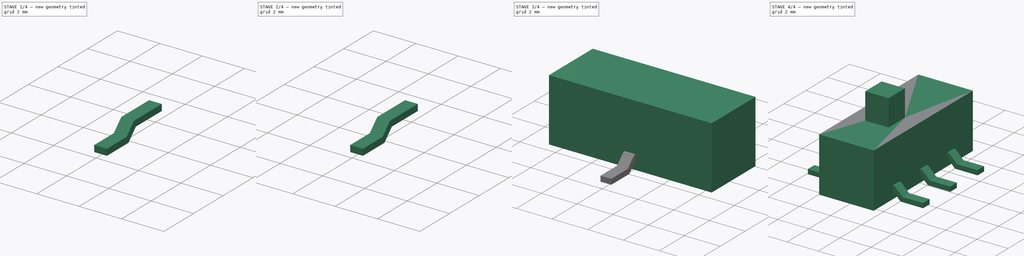
[diagram: build sequence overview — one tinted view per stage of 4, left to right]
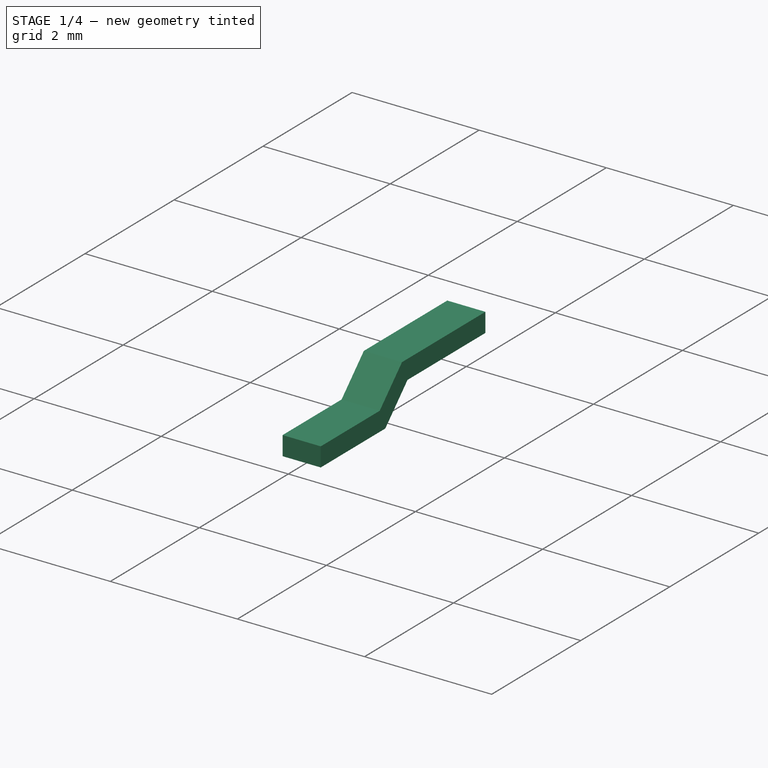
[diagram: stage 1 of 4 — iso view after this stage's code; geometry added in this stage tinted green]
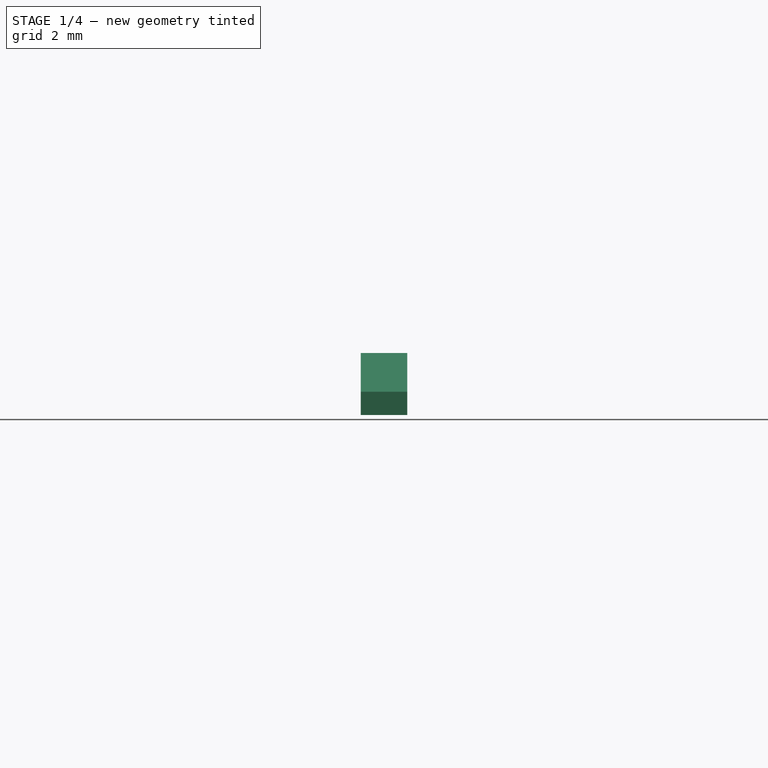
[diagram: stage 1 of 4 — front view after this stage's code; geometry added in this stage tinted green]
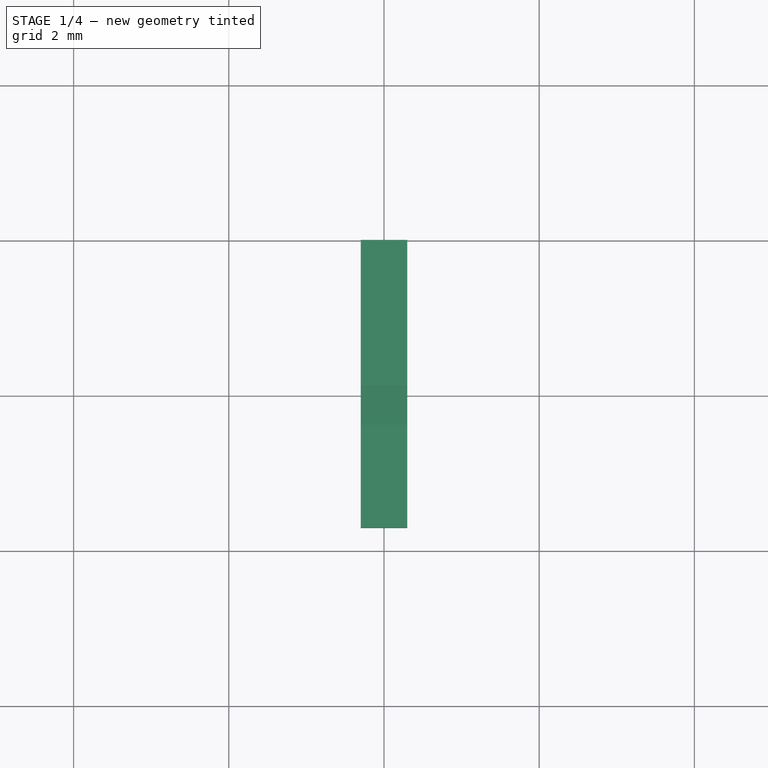
[diagram: stage 1 of 4 — top view after this stage's code; geometry added in this stage tinted green]
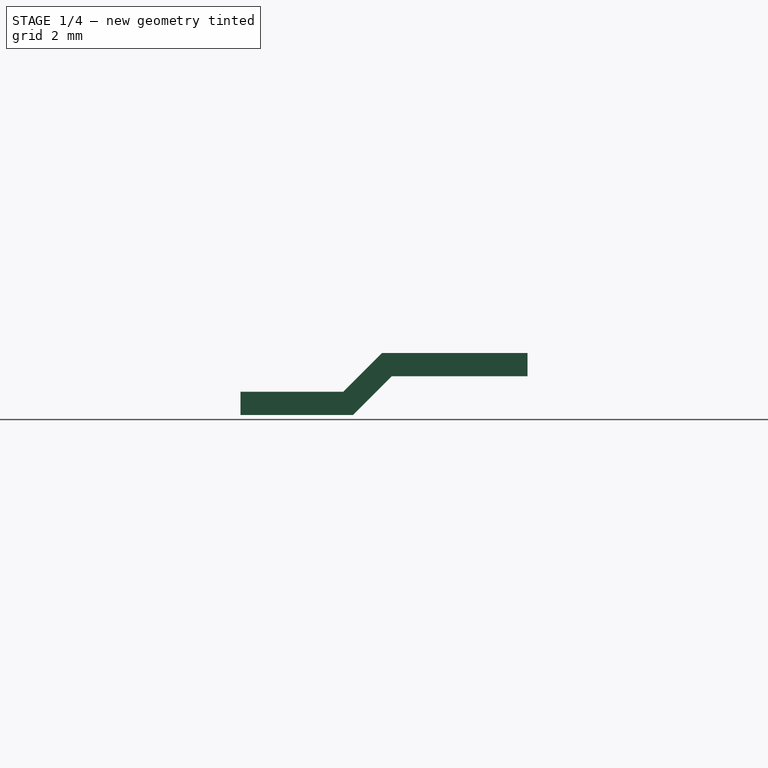
[diagram: stage 1 of 4 — right view after this stage's code; geometry added in this stage tinted green]
FCSTD DOCUMENT  (FreeCAD 1.0R39109 (Git))
Label: MST22D18G2_125
License: All rights reserved
LicenseURL: http://en.wikipedia.org/wiki/All_rights_reserved
objects: PartDesign::Body×7, Sketcher::SketchObject×5, PartDesign::FeatureBase×5, Part::Feature×5, PartDesign::Pad×3, App::DocumentObjectGroup×1, Part::MultiFuse×1
note: 42 computed .brp shape members not serialized (recipe doc carries the construction recipe); baked Part::Feature solids carry a one-line shape summary decoded from their .brp

FEATURE [PartDesign::Body] Body
  AllowCompound = false
  Group = -> [Sketch,Pad,Sketch001,Pad001]
  Origin = -> Origin
  Tip = -> Pad001
FEATURE [Sketcher::SketchObject] Sketch002
  ArcFitTolerance = 1e-06
  AttachmentSupport = -> [YZ_Plane001]
  FullyConstrained = true
  MakeInternals = false
  MapMode = 5
  Placement = pos=(0,0,0) rot=(0.57735,0.57735,0.57735;2.0944rad)
  expr: Constraints[22] = 3.5 / 2
  expr: Constraints[24] = 4.5 / 2
  expr: Constraints[26] = 7.4 / 2
  sketch-geometry (9):
    g0: LineSegment StartX=-3.7 StartY=0 StartZ=0 EndX=-2.25 EndY=0 EndZ=0
    g1: LineSegment StartX=-2.25 StartY=0 StartZ=0 EndX=-1.75 EndY=0.5 EndZ=0
    g2: LineSegment StartX=-1.75 StartY=0.5 StartZ=0 EndX=0 EndY=0.5 EndZ=0
    g3: LineSegment StartX=0 StartY=0.5 StartZ=0 EndX=0 EndY=0.8 EndZ=0
    g4: LineSegment StartX=0 StartY=0.8 StartZ=0 EndX=-1.87426 EndY=0.8 EndZ=0
    g5: LineSegment StartX=-1.87426 StartY=0.8 StartZ=0 EndX=-2.37426 EndY=0.3 EndZ=0
    g6: LineSegment StartX=-2.37426 StartY=0.3 StartZ=0 EndX=-3.7 EndY=0.3 EndZ=0
    g7: LineSegment StartX=-3.7 StartY=0.3 StartZ=0 EndX=-3.7 EndY=0 EndZ=0
    g8: LineSegment [constr] StartX=-1.75 StartY=0.5 StartZ=0 EndX=-1.96213 EndY=0.712132 EndZ=0
  constraints (27):
    c: PointOnObject(g0,g-1)
    c: PointOnObject(g0,g-1)
    c: Coincident(g1,g0)
    c: Coincident(g2,g1)
    c: Horizontal(g2)
    c: Coincident(g3,g2)
    c: Vertical(g3)
    c: Coincident(g4,g3)
    c: Horizontal(g4)
    c: Coincident(g5,g4)
    c: Coincident(g6,g5)
    c: Horizontal(g6)
    c: Coincident(g7,g6)
    c: Coincident(g7,g0)
    c: Vertical(g7)
    c: Parallel(g5,g1)
    c: DistanceY(g7,g7) = 0.3
    c: Equal(g7,g3)
    c: Coincident(g8,g1)
    c: PointOnObject(g8,g5)
    c: Perpendicular(g8,g1)
    c: Equal(g7,g8)
    c: DistanceX(g2,g2) = 1.75
    c: PointOnObject(g2,g-2)
    c: DistanceX(g0,g-1) = 2.25
    c: Angle(g-1,g1) = 0.785398
    c: DistanceX(g0,g-1) = 3.7
FEATURE [PartDesign::Pad] Pad002
  Direction = (1,0,0)
  Length = 0.6
  Length2 = 10
  Midplane = true
  Placement = pos=(0,0,0) rot=(1,1,1;2.0944rad)
  Profile = -> Sketch002
  ReferenceAxis = -> Sketch002 [N_Axis]
  Refine = true
  Suppressed = false
  Type = 0
FEATURE [PartDesign::Body] Body005  label="pin004"
  AllowCompound = false
  Group = -> [Clone003]
  Origin = -> Origin005
  Placement = pos=(-2.5,0,0) rot=(0,0,1;3.14159rad)
  Tip = -> Clone003
FEATURE [PartDesign::FeatureBase] Clone004
  BaseFeature = -> Body001
  Suppressed = false
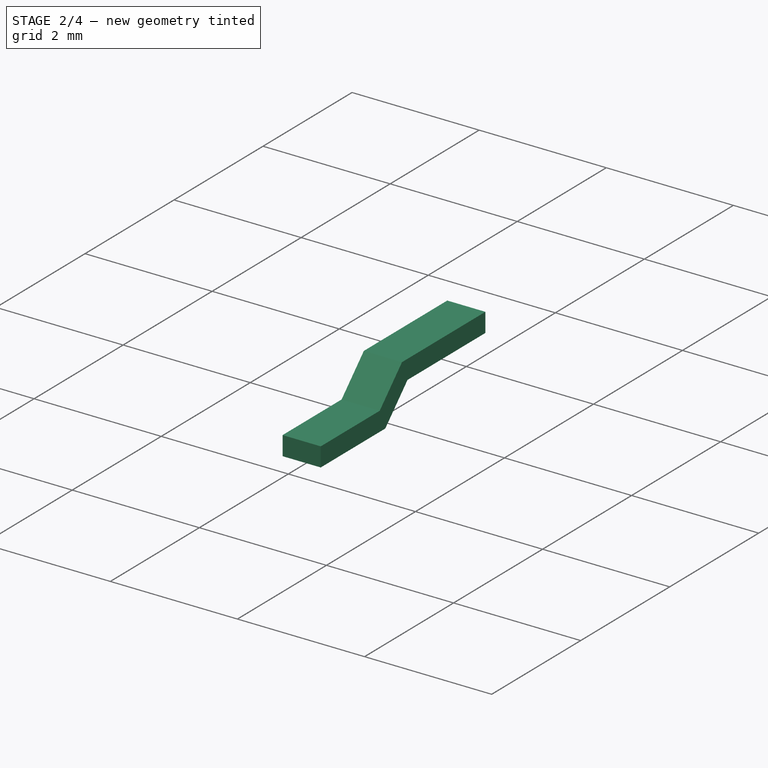
[diagram: stage 2 of 4 — iso view after this stage's code; geometry added in this stage tinted green]
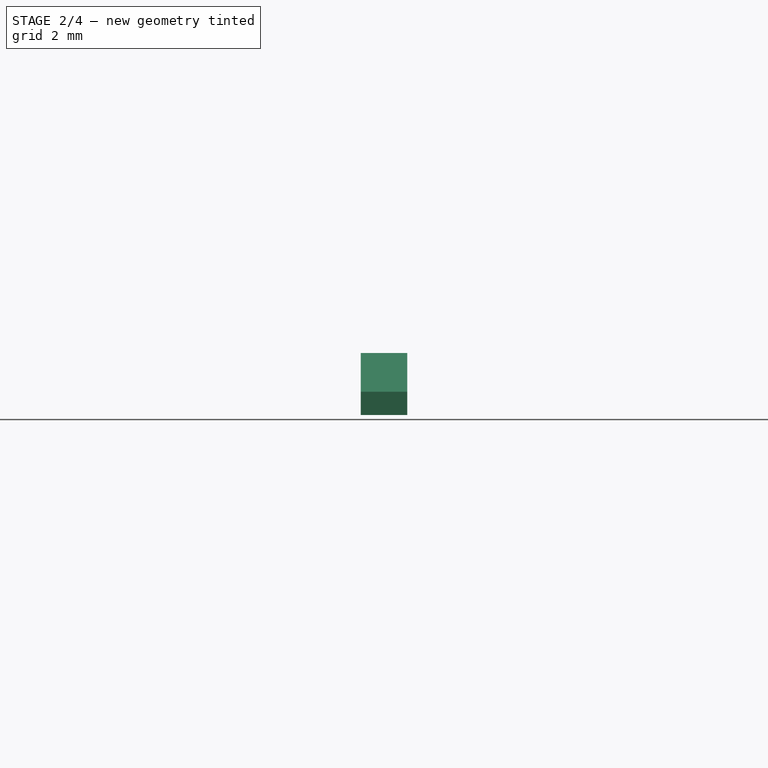
[diagram: stage 2 of 4 — front view after this stage's code; geometry added in this stage tinted green]
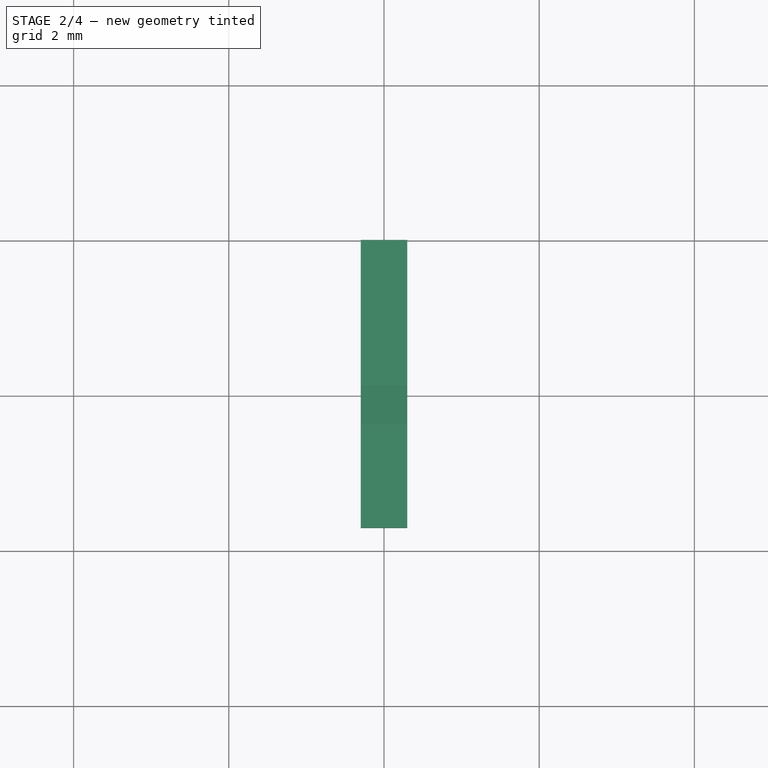
[diagram: stage 2 of 4 — top view after this stage's code; geometry added in this stage tinted green]
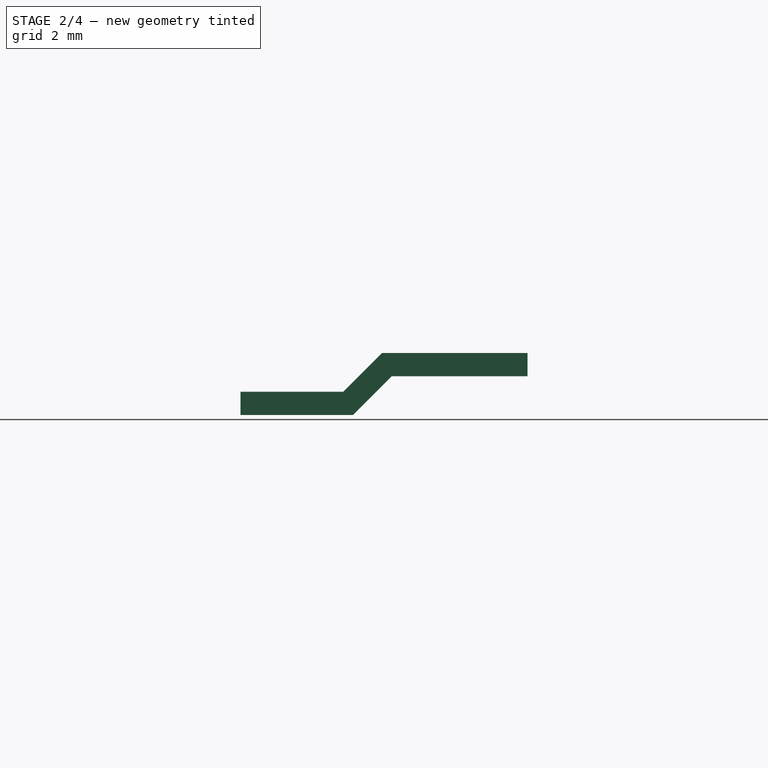
[diagram: stage 2 of 4 — right view after this stage's code; geometry added in this stage tinted green]
FEATURE [PartDesign::Body] Body003  label="pin002"
  AllowCompound = false
  Group = -> [Clone001]
  Origin = -> Origin003
  Placement = pos=(2.5,0,0) rot=(0,0,1;0rad)
  Tip = -> Clone001
FEATURE [PartDesign::FeatureBase] Clone002
  BaseFeature = -> Body001
  Suppressed = false
FEATURE [PartDesign::Body] Body004  label="pin003"
  AllowCompound = false
  Group = -> [Clone002]
  Origin = -> Origin004
  Placement = pos=(0,0,0) rot=(0,0,1;3.14159rad)
  Tip = -> Clone002
FEATURE [PartDesign::FeatureBase] Clone003
  BaseFeature = -> Body001
  Suppressed = false
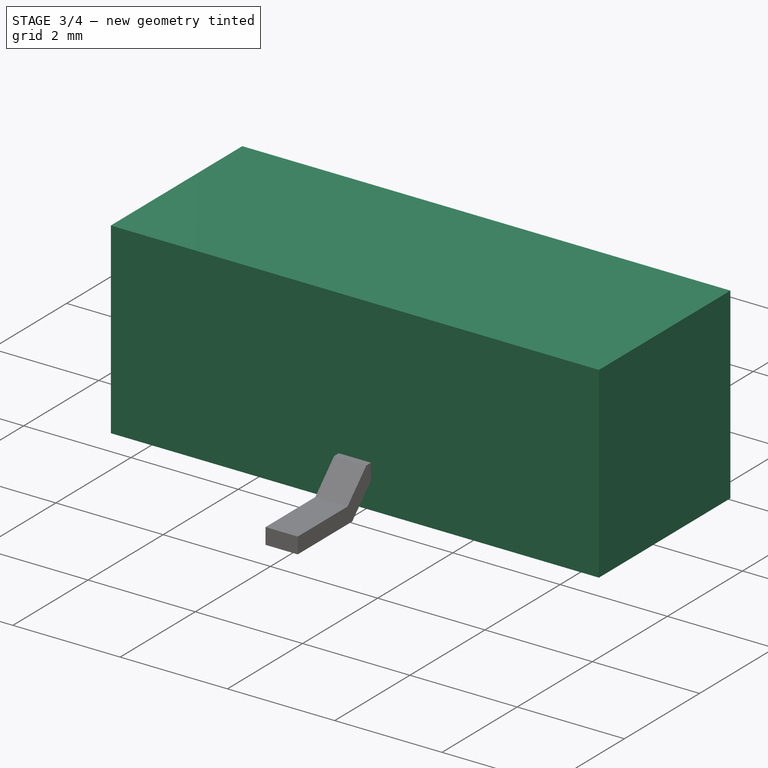
[diagram: stage 3 of 4 — iso view after this stage's code; geometry added in this stage tinted green]
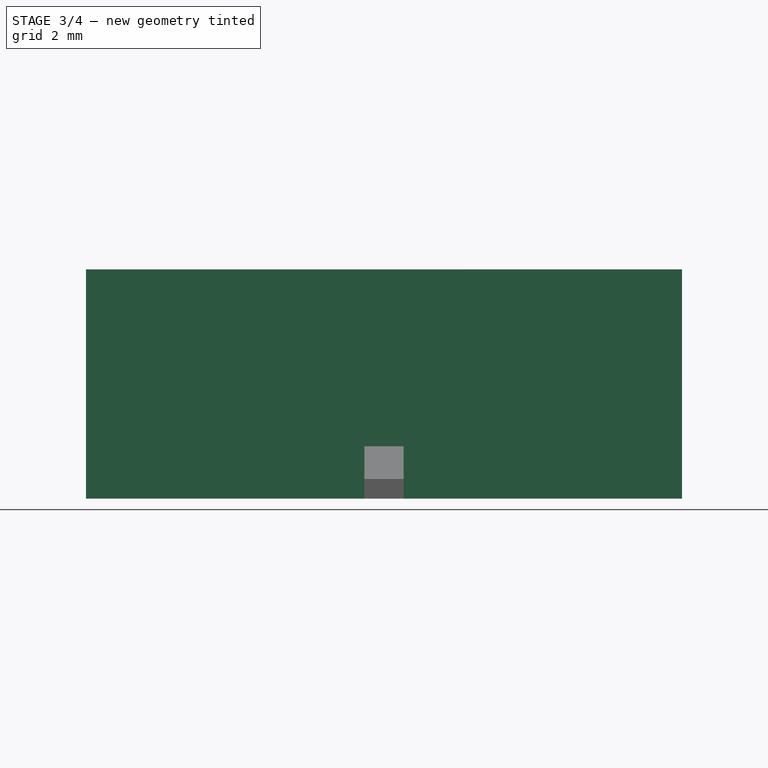
[diagram: stage 3 of 4 — front view after this stage's code; geometry added in this stage tinted green]
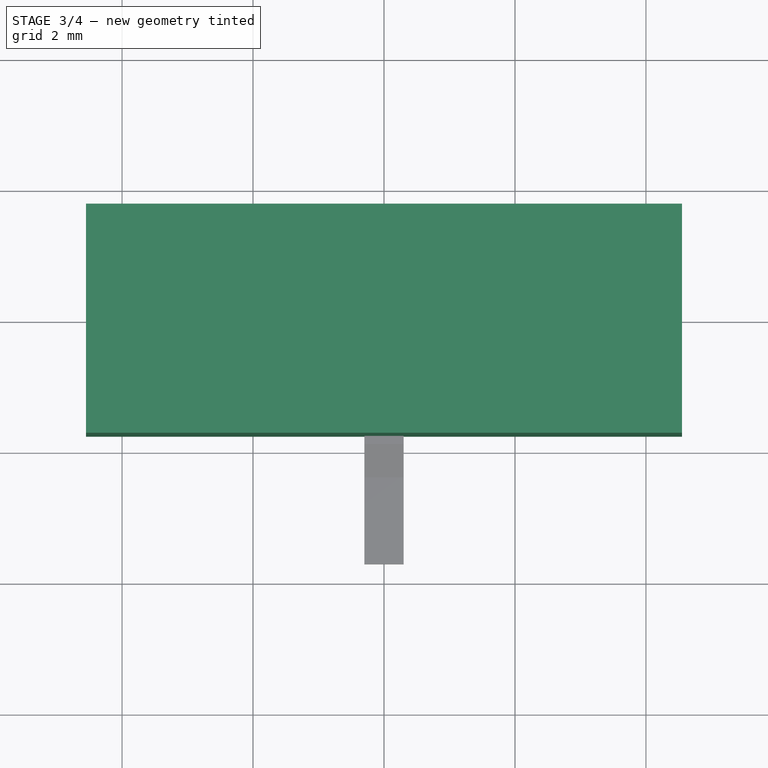
[diagram: stage 3 of 4 — top view after this stage's code; geometry added in this stage tinted green]
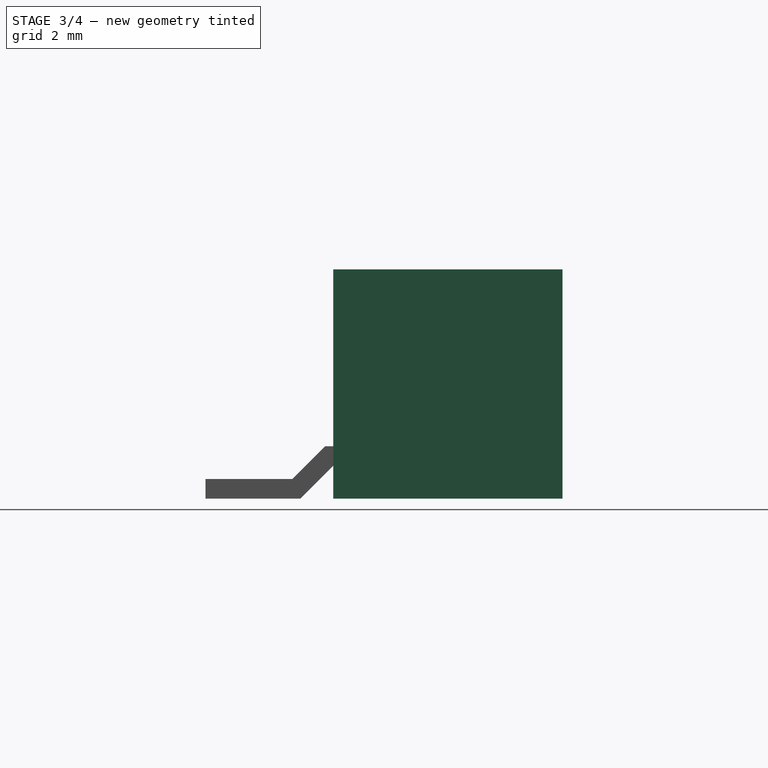
[diagram: stage 3 of 4 — right view after this stage's code; geometry added in this stage tinted green]
FEATURE [Sketcher::SketchObject] Sketch
  ArcFitTolerance = 1e-06
  AttachmentSupport = -> [XY_Plane]
  FullyConstrained = true
  MakeInternals = false
  MapMode = 5
  sketch-geometry (4):
    g0: LineSegment StartX=-4.55 StartY=1.75 StartZ=0 EndX=-4.55 EndY=-1.75 EndZ=0
    g1: LineSegment StartX=-4.55 StartY=-1.75 StartZ=0 EndX=4.55 EndY=-1.75 EndZ=0
    g2: LineSegment StartX=4.55 StartY=-1.75 StartZ=0 EndX=4.55 EndY=1.75 EndZ=0
    g3: LineSegment StartX=4.55 StartY=1.75 StartZ=0 EndX=-4.55 EndY=1.75 EndZ=0
  constraints (10):
    c: Coincident(g0,g1)
    c: Coincident(g1,g2)
    c: Coincident(g2,g3)
    c: Coincident(g3,g0)
    c: Vertical(g0)
    c: Horizontal(g1)
    c: DistanceY(g2,g2) = 3.5
    c: DistanceX(g3,g3) = 9.1
    c: Symmetric(g0,g2,g-2)
    c: Symmetric(g2,g1,g-1)
FEATURE [PartDesign::Pad] Pad
  Direction = (0,0,1)
  Length = 3.5
  Length2 = 10
  Profile = -> Sketch
  ReferenceAxis = -> Sketch [N_Axis]
  Refine = true
  Suppressed = false
  Type = 0
FEATURE [PartDesign::Body] Body001  label="pin"
  AllowCompound = false
  Group = -> [Sketch002,Pad002]
  Origin = -> Origin001
  Tip = -> Pad002
FEATURE [PartDesign::FeatureBase] Clone
  BaseFeature = -> Body001
  Suppressed = false
FEATURE [PartDesign::Body] Body002  label="pin001"
  AllowCompound = false
  Group = -> [Clone]
  Origin = -> Origin002
  Placement = pos=(-2.5,0,0) rot=(0,0,1;0rad)
  Tip = -> Clone
FEATURE [PartDesign::FeatureBase] Clone001
  BaseFeature = -> Body001
  Suppressed = false
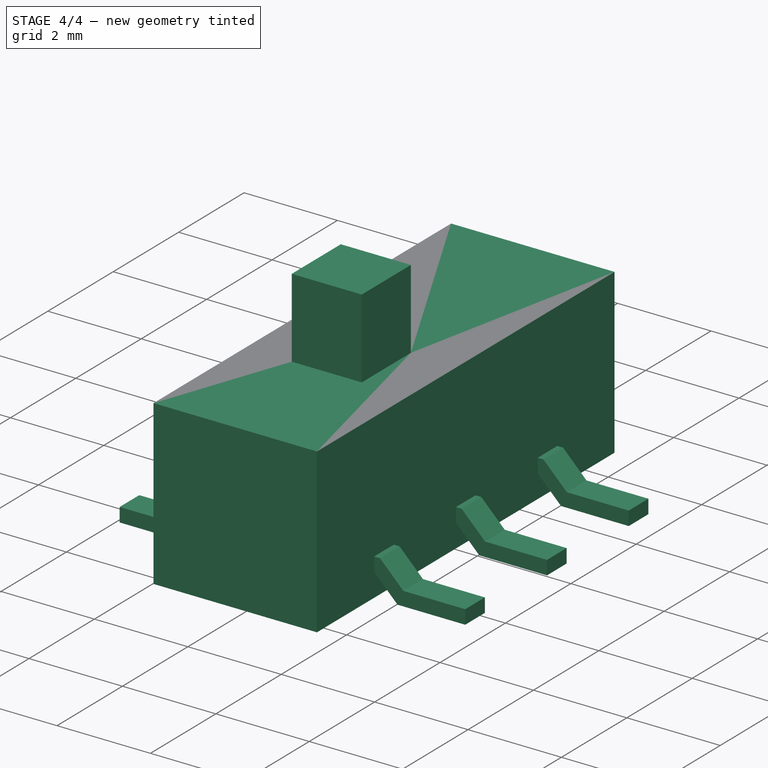
[diagram: stage 4 of 4 — iso view after this stage's code; geometry added in this stage tinted green]
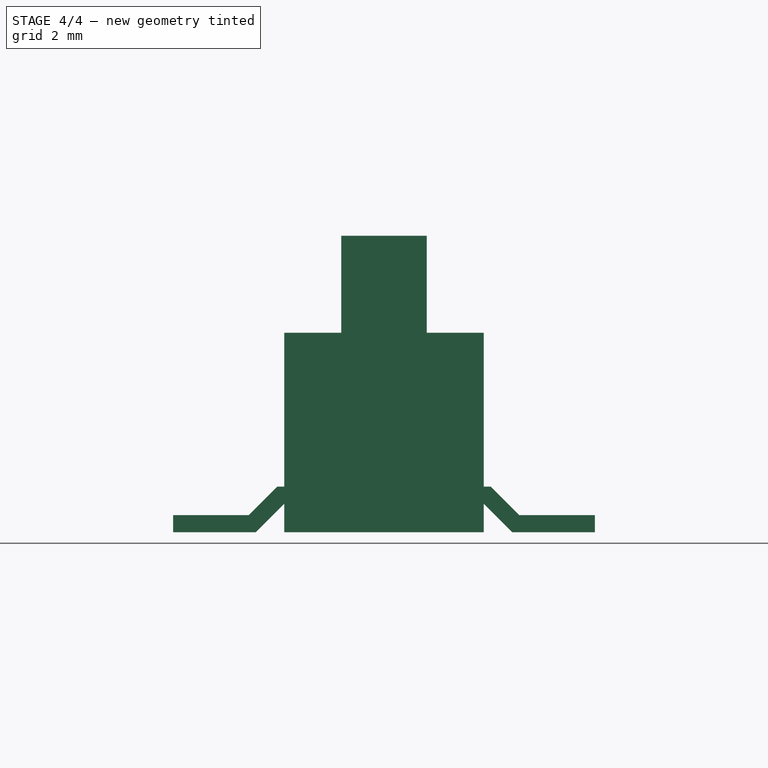
[diagram: stage 4 of 4 — front view after this stage's code; geometry added in this stage tinted green]
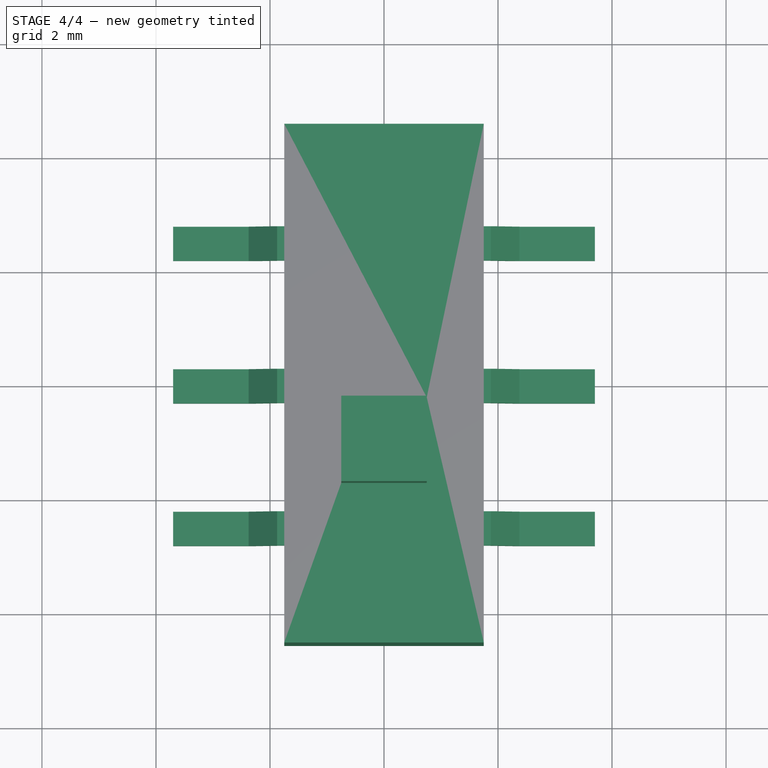
[diagram: stage 4 of 4 — top view after this stage's code; geometry added in this stage tinted green]
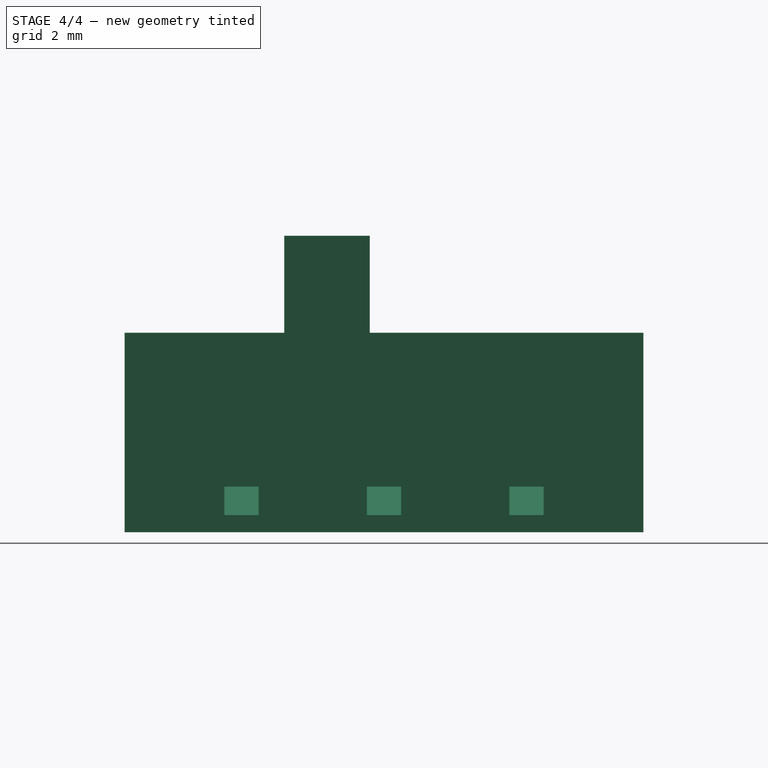
[diagram: stage 4 of 4 — right view after this stage's code; geometry added in this stage tinted green]
FEATURE [Sketcher::SketchObject] Sketch001
  ArcFitTolerance = 1e-06
  AttachmentSupport = -> [Pad]
  FullyConstrained = true
  MakeInternals = false
  MapMode = 5
  Placement = pos=(0,0,3.5) rot=(0,0,1;0rad)
  sketch-geometry (5):
    g0: LineSegment StartX=-1.75 StartY=0.75 StartZ=0 EndX=-1.75 EndY=-0.75 EndZ=0
    g1: LineSegment StartX=-1.75 StartY=-0.75 StartZ=0 EndX=-0.25 EndY=-0.75 EndZ=0
    g2: LineSegment StartX=-0.25 StartY=-0.75 StartZ=0 EndX=-0.25 EndY=0.75 EndZ=0
    g3: LineSegment StartX=-0.25 StartY=0.75 StartZ=0 EndX=-1.75 EndY=0.75 EndZ=0
    g4: LineSegment [constr] StartX=-1 StartY=0.75 StartZ=0 EndX=-1 EndY=-0.75 EndZ=0
  constraints (13):
    c: Coincident(g0,g1)
    c: Coincident(g1,g2)
    c: Coincident(g2,g3)
    c: Coincident(g3,g0)
    c: Vertical(g2)
    c: Horizontal(g1)
    c: Horizontal(g3)
    c: DistanceX(g3,g3) = 1.5
    c: Equal(g3,g0)
    c: Symmetric(g0,g0,g-1)
    c: Symmetric(g3,g3,g4)
    c: Symmetric(g1,g1,g4)
    c: DistanceX(g4,g-1) = 1
FEATURE [PartDesign::Pad] Pad001
  BaseFeature = -> Pad
  Direction = (0,0,1)
  Length = 1.7
  Length2 = 10
  Profile = -> Sketch001
  ReferenceAxis = -> Sketch001 [N_Axis]
  Refine = true
  Suppressed = false
  Type = 0
FEATURE [PartDesign::Body] Body006  label="pin005"
  AllowCompound = false
  Group = -> [Clone004]
  Origin = -> Origin006
  Placement = pos=(2.5,0,0) rot=(0,0,1;3.14159rad)
  Tip = -> Clone004
FEATURE [Part::Feature] Shape001  label="topPads"
  Placement = pos=(0,0,-0.01) rot=(0,0,1;0rad)
  shape: bbox 7.5 x 6 x 0.01 mm, 60 faces, 6 solids (baked)
FEATURE [Part::Feature] Shape  label="F.SilkS_outline_"
  Placement = pos=(0,0,0.01) rot=(0,0,1;0rad)
  shape: bbox 3.653 x 9.153 x 2e-07 mm, 0 faces, 0 solids (baked)
FEATURE [Sketcher::SketchObject] _F_SilkS__sketch  label="F.SilkS_"
  ArcFitTolerance = 1e-06
  FullyConstrained = false
  MakeInternals = false
  Placement = pos=(0,0,0.01) rot=(0,0,1;0rad)
  sketch-geometry (12):
    g0: LineSegment StartX=-1.75 StartY=4.5 StartZ=0 EndX=-1.75 EndY=-4.5 EndZ=0
    g1: LineSegment StartX=-1.75 StartY=-4.5 StartZ=0 EndX=1.75 EndY=-4.5 EndZ=0
    g2: LineSegment StartX=1.75 StartY=-4.5 StartZ=0 EndX=1.75 EndY=4.5 EndZ=0
    g3: LineSegment StartX=1.75 StartY=4.5 StartZ=0 EndX=-1.75 EndY=4.5 EndZ=0
    g4: LineSegment StartX=-1 StartY=2 StartZ=0 EndX=-1 EndY=-2 EndZ=0
    g5: LineSegment StartX=-1 StartY=-2 StartZ=0 EndX=1 EndY=-2 EndZ=0
    g6: LineSegment StartX=1 StartY=-2 StartZ=0 EndX=1 EndY=2 EndZ=0
    g7: LineSegment StartX=1 StartY=2 StartZ=0 EndX=-1 EndY=2 EndZ=0
    g8: LineSegment StartX=-0.75 StartY=1.75 StartZ=0 EndX=-0.75 EndY=0.25 EndZ=0
    g9: LineSegment StartX=-0.75 StartY=0.25 StartZ=0 EndX=0.75 EndY=0.25 EndZ=0
    g10: LineSegment StartX=0.75 StartY=0.25 StartZ=0 EndX=0.75 EndY=1.75 EndZ=0
    g11: LineSegment StartX=0.75 StartY=1.75 StartZ=0 EndX=-0.75 EndY=1.75 EndZ=0
  constraints (12):
    c: Coincident(g0,g1)
    c: Coincident(g1,g2)
    c: Coincident(g2,g3)
    c: Coincident(g3,g0)
    c: Coincident(g4,g5)
    c: Coincident(g5,g6)
    c: Coincident(g6,g7)
    c: Coincident(g7,g4)
    c: Coincident(g8,g9)
    c: Coincident(g9,g10)
    c: Coincident(g10,g11)
    c: Coincident(g11,g8)
FEATURE [Part::Feature] Shape002  label="F.CrtYd_outline_"
  Placement = pos=(0,0,0.01) rot=(0,0,1;0rad)
  shape: bbox 7.55 x 9.55 x 2e-07 mm, 0 faces, 0 solids (baked)
FEATURE [Sketcher::SketchObject] _F_CrtYd__sketch  label="F.CrtYd_"
  ArcFitTolerance = 1e-06
  FullyConstrained = false
  MakeInternals = false
  Placement = pos=(0,0,0.01) rot=(0,0,1;0rad)
  sketch-geometry (4):
    g0: LineSegment StartX=-3.75 StartY=4.75 StartZ=0 EndX=-3.75 EndY=-4.75 EndZ=0
    g1: LineSegment StartX=-3.75 StartY=-4.75 StartZ=0 EndX=3.75 EndY=-4.75 EndZ=0
    g2: LineSegment StartX=3.75 StartY=-4.75 StartZ=0 EndX=3.75 EndY=4.75 EndZ=0
    g3: LineSegment StartX=3.75 StartY=4.75 StartZ=0 EndX=-3.75 EndY=4.75 EndZ=0
  constraints (4):
    c: Coincident(g0,g1)
    c: Coincident(g1,g2)
    c: Coincident(g2,g3)
    c: Coincident(g3,g0)
FEATURE [Part::Feature] PCB
  shape: bbox 11.33 x 14.33 x 1.58 mm, 6 faces (baked)
FEATURE [App::DocumentObjectGroup] Group  label="MST22D18G_125-fp"
  Group = -> [Shape001,_F_SilkS__sketch,Shape,_F_CrtYd__sketch,Shape002,PCB]
FEATURE [Part::MultiFuse] Fusion  label="MST22D18G_125_fusion"
  Placement = pos=(9e-16,9e-16,0) rot=(0,0,1;1.5708rad)
  Refine = true
  Shapes = -> [Body,Body001,Body002,Body003,Body004,Body005,Body006]
FEATURE [Part::Feature] Shape005  label="MST22D18G_125"
  shape: bbox 7.4 x 9.1 x 5.2 mm, 59 faces (baked)
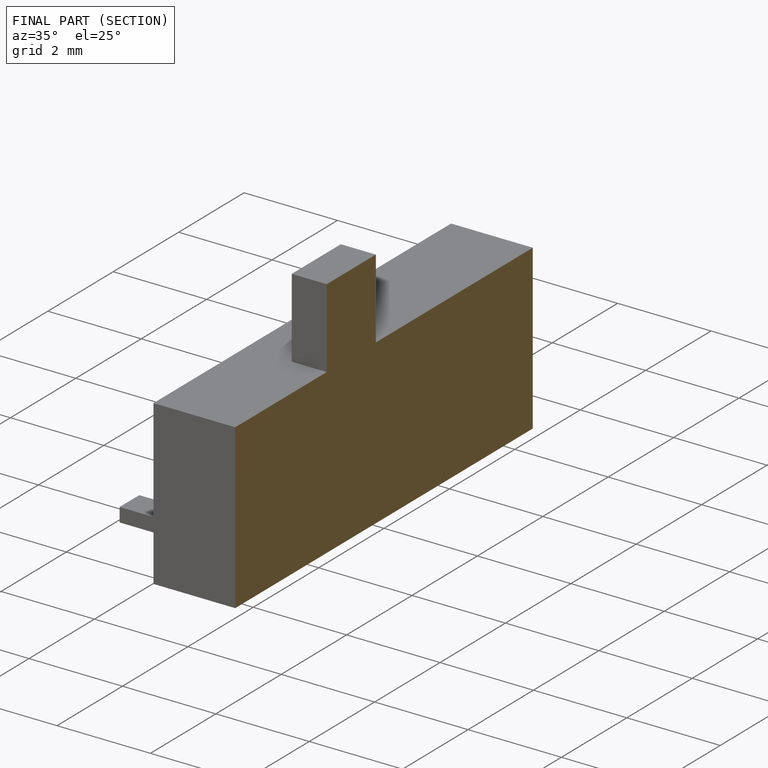
[diagram: finished part — half-section view (interior)]
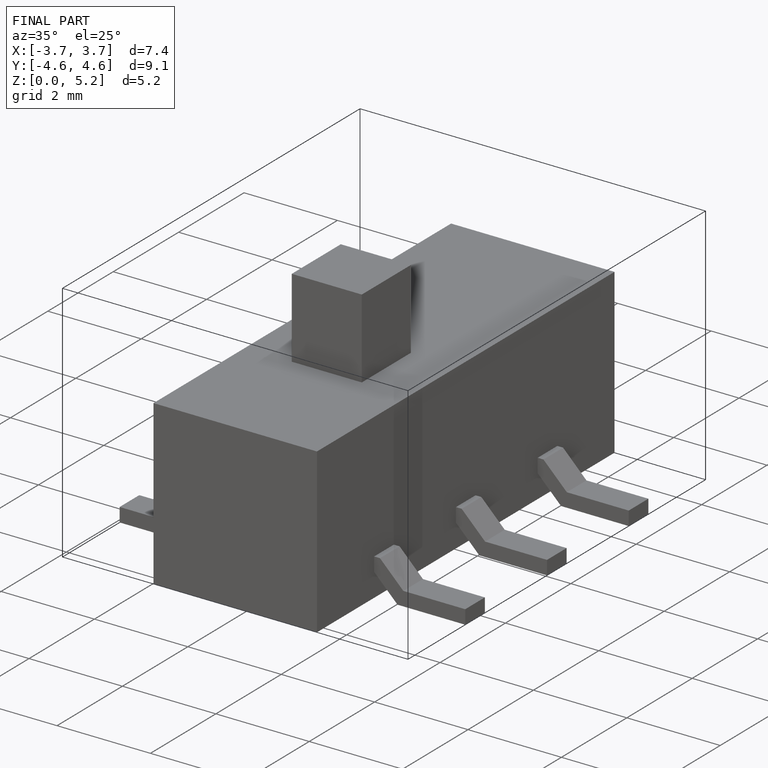
[diagram: finished part — iso view with bounding-box wireframe]
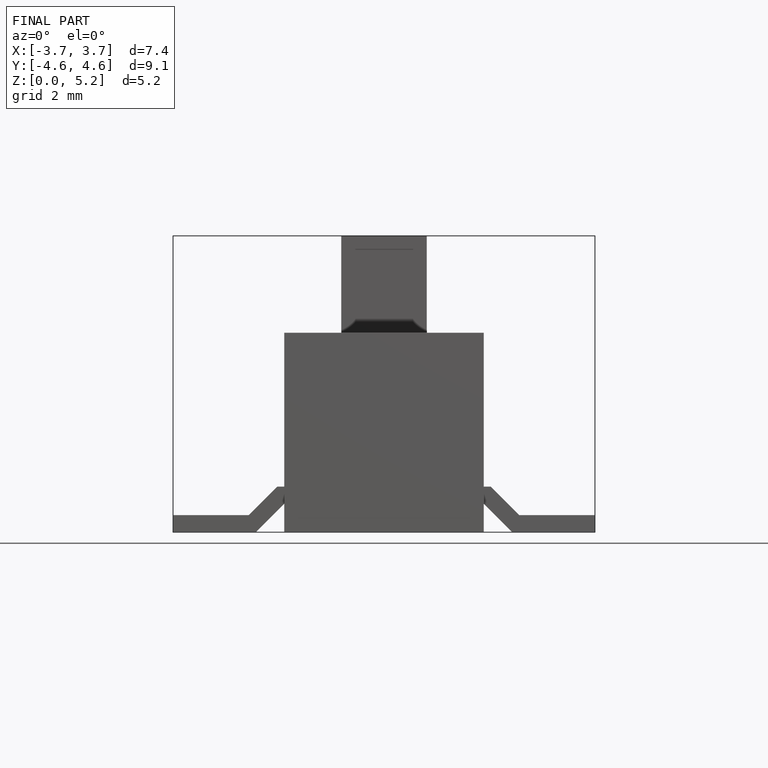
[diagram: finished part — front view with bounding-box wireframe]
